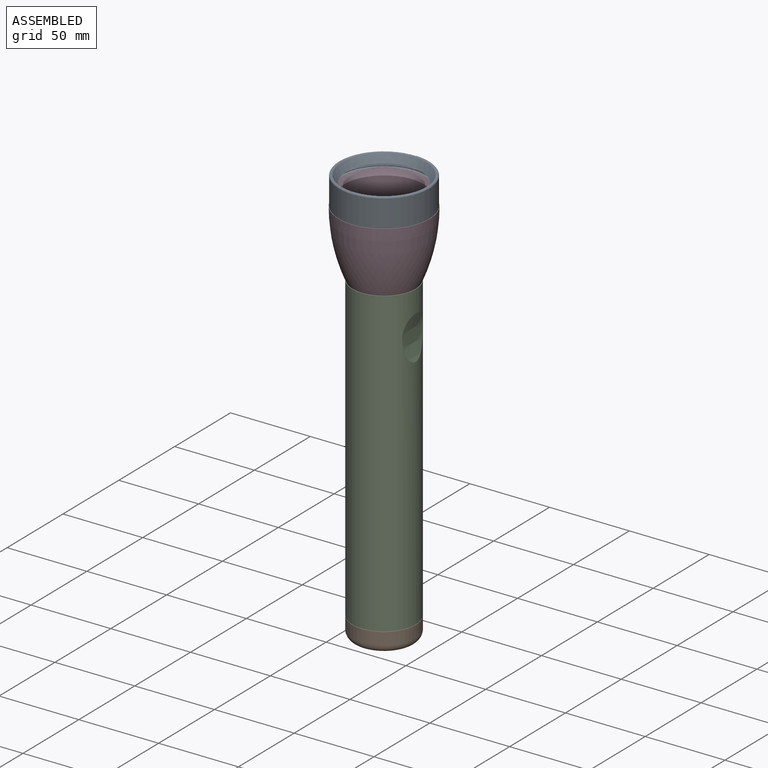
[diagram: assembled view]
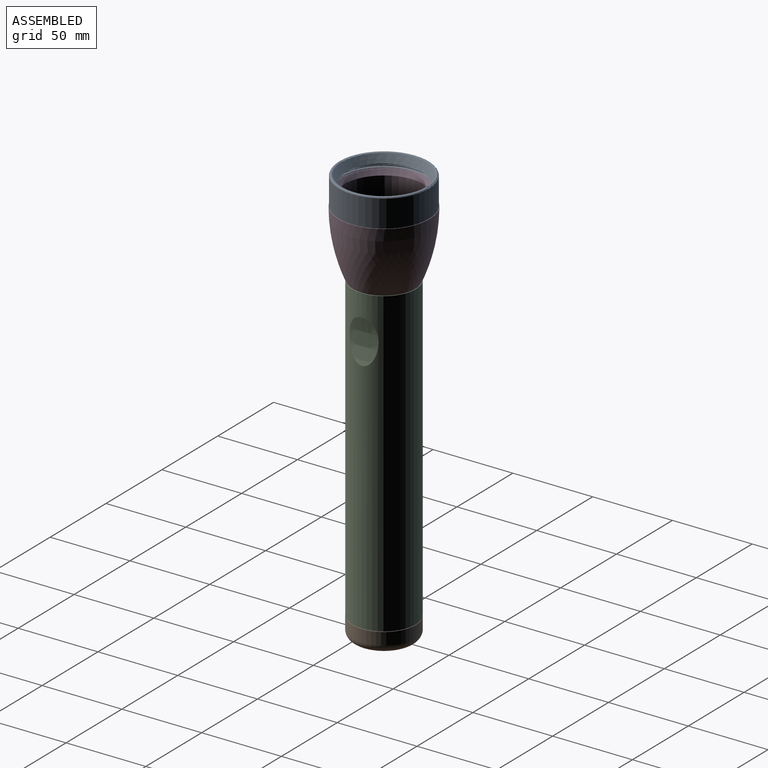
[diagram: assembled view, second angle]
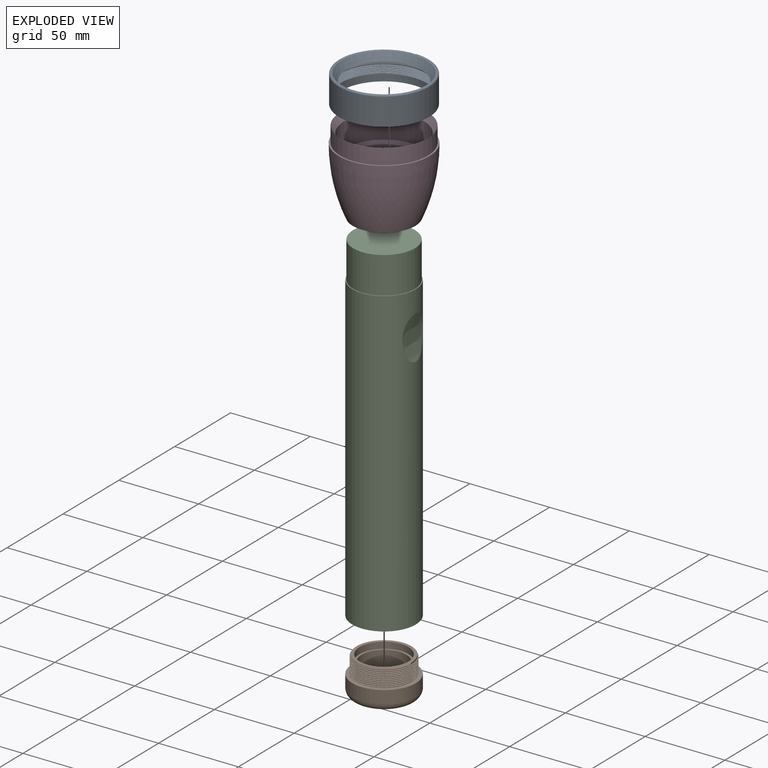
[diagram: exploded view]
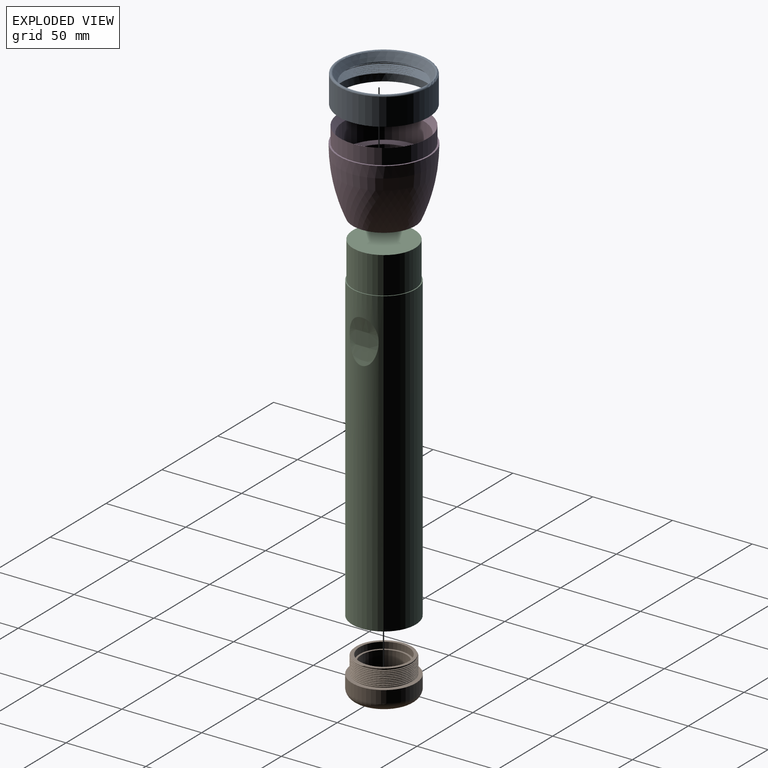
[diagram: exploded view, second angle]
ASSEMBLY  parts=4 mates=3
PART A: 19 faces, bbox 62.8x61.5x18.2 mm
  f0: cylinder r=26.55mm len=5.8mm, axis (0,0,-1), area 0.1mm2, adj f1,f14,f15
  f1: plane 54.62x40.03mm, normal (0,0,1), area 31.6mm2, adj f0,f11,f14,f15,f17,f18
  f2: cylinder r=26.55mm len=53.1mm, axis (0,0,-1), area 70.6mm2, adj f3,f12,f16
  f3: plane 54.3x54.3mm, normal (0,0,-1), area 100.3mm2, adj f2,f4,f12,f16,f17
  f4: cylinder r=27.15mm len=54.3mm, axis (0,0,-1), area 341.2mm2, adj f3,f5
  f5: cone r=27.15mm half-angle=1.4deg, axis (0,0,-1), area 718mm2, adj f4,f6
  f6: cone r=23.75mm half-angle=39.8deg, axis (0,0,-1), area 876mm2, adj f5,f7
  f7: cone r=23.75mm half-angle=29.3deg, axis (0,0,-1), area 864mm2, adj f6,f8
  f8: torus R=27.25mm, axis (0,0,-1), area 436mm2, adj f7,f9
  f9: cylinder r=28.25mm len=56.5mm, axis (0,0,-1), area 3000.4mm2, adj f8,f10
  f10: plane 56.5x56.5mm, normal (0,0,1), area 191.4mm2, adj f9,f11
  f11: cylinder r=27.15mm len=54.3mm, axis (0,0,-1), area 775.7mm2, adj f1,f10,f13,f17,f18
  f12: bspline ~60.47x57.7mm, area 7.1mm2, adj f2,f3,f16,f17
  f13: plane 0.35x0.29mm, normal (-0.34,-0.94,0), area 0.1mm2, adj f11,f17,f18
  f14: bspline ~26.19x9.91mm, area 0.4mm2, adj f0,f1,f15,f18
  f15: plane 0.13x0.06mm, normal (-0.34,-0.94,0), area 0mm2, adj f0,f1,f14,f17
  f16: plane 0.94x0.85mm, normal (0.34,0.94,0), area 0.5mm2, adj f2,f3,f12,f17,f18
  f17: bspline ~62.44x59.58mm, area 1006.3mm2, adj f1,f3,f11,f12,f13,f15,f16,f18
  f18: bspline ~62.44x59.58mm, area 933.4mm2, adj f1,f11,f13,f14,f16,f17
PART B: 17 faces, bbox 43.6x43.6x24.4 mm
  f0: plane 40.35x40.35mm, normal (0,0,1), area 296.5mm2, adj f2,f3,f9,f10,f12,f14
  f1: plane 29.89x29.89mm, normal (0,0,-1), area 701.8mm2, adj f16
  f2: cylinder r=19.95mm len=39.89mm, axis (0,0,-1), area 953.8mm2, adj f0,f16
  f3: cylinder r=17.19mm len=34.38mm, axis (0,0,1), area 260.7mm2, adj f0,f4,f9,f10,f12,f15
  f4: plane 34.38x34.38mm, normal (0,0,1), area 190.8mm2, adj f3,f5,f10,f11,f15
  f5: cylinder r=15.32mm len=30.64mm, axis (0,0,1), area 385.1mm2, adj f4,f6
  f6: plane 30.64x30.64mm, normal (0,0,1), area 114.4mm2, adj f5,f8
  f7: plane 28.17x28.17mm, normal (0,0,1), area 623mm2, adj f8
  f8: cylinder r=14.08mm len=28.17mm, axis (0,0,1), area 1415.7mm2, adj f6,f7
  f9: plane 0.02x0.01mm, normal (0,-1,0), area 0mm2, adj f0,f3,f10
  f10: bspline ~41.3x35.77mm, area 680.6mm2, adj f0,f3,f4,f9,f11,f13,f14,f15
  f11: cylinder r=17.18mm len=1.57mm, axis (0,0,-1), area 0mm2, adj f4,f10,f15
  f12: bspline ~41.3x35.77mm, area 808.2mm2, adj f0,f3,f13,f14,f15
  f13: bspline ~35.62x35.49mm, area 19.7mm2, adj f10,f12,f14,f15
  f14: bspline ~35.68x35.53mm, area 195.8mm2, adj f0,f10,f12,f13
  f15: bspline ~2.69x1.07mm, area 1mm2, adj f3,f4,f10,f11,f12,f13
  f16: torus R=14.95mm, axis (0,0,1), area 894.7mm2, adj f1,f2
PART C: 8 faces, bbox 39.9x39.9x213 mm
  f0: cylinder r=19.93mm len=190mm, axis (0,0,-1), area 23386.7mm2, adj f1,f4,f6
  f1: plane 39.86x39.86mm, normal (0,0,-1), area 203.4mm2, adj f0,f2
  f2: cylinder r=18.23mm len=36.47mm, axis (0,0,-1), area 2864.3mm2, adj f1,f3
  f3: plane 36.47x36.47mm, normal (0,0,-1), area 1044.6mm2, adj f2
  f4: extruded ~27.37x18.2mm, area 400.6mm2, adj f0
  f5: cylinder r=19.35mm len=38.7mm, axis (0,0,1), area 2796.6mm2, adj f6,f7
  f6: plane 39.86x39.86mm, normal (0,0,1), area 71.4mm2, adj f0,f5
  f7: plane 38.7x38.7mm, normal (0,0,1), area 1176.5mm2, adj f5
PART D: 7 faces, bbox 57x57x51.7 mm
  f0: plane 57x57mm, normal (0,0,1), area 175.9mm2, adj f1,f6
  f1: cylinder r=27.5mm len=55mm, axis (0,0,-1), area 1693.3mm2, adj f0,f2
  f2: cone r=27.5mm half-angle=29.5deg, axis (0,0,1), area 825.2mm2, adj f1,f3
  f3: cylinder r=25.04mm len=50.07mm, axis (0,0,-1), area 2430.3mm2, adj f2,f4
  f4: plane 50.07x50.07mm, normal (0,0,1), area 755mm2, adj f3,f5
  f5: cylinder r=19.66mm len=39.32mm, axis (0,0,-1), area 3940.5mm2, adj f4,f6
  f6: revolved ~57x57mm, area 6920.6mm2, adj f0,f5
PLACE A rot(axis=(1,0,0),180deg) t=(45.24,56.19,267.8)mm
PLACE B t=(16.99,56.19,5.02)mm
PLACE C t=(16.99,56.19,17.84)mm fixed
PLACE D t=(16.99,56.19,207.93)mm
MATE slider B.f5 <-> C.f2  axis (0,0,1) through (16.99,56.19,28.63)mm
MATE slider D.f1 <-> C.f5  axis (0,0,-1) through (16.99,56.19,207.93)mm
MATE slider A.f0 <-> D.f1  axis (0,0,-1) through (16.99,56.19,249.9)mm
